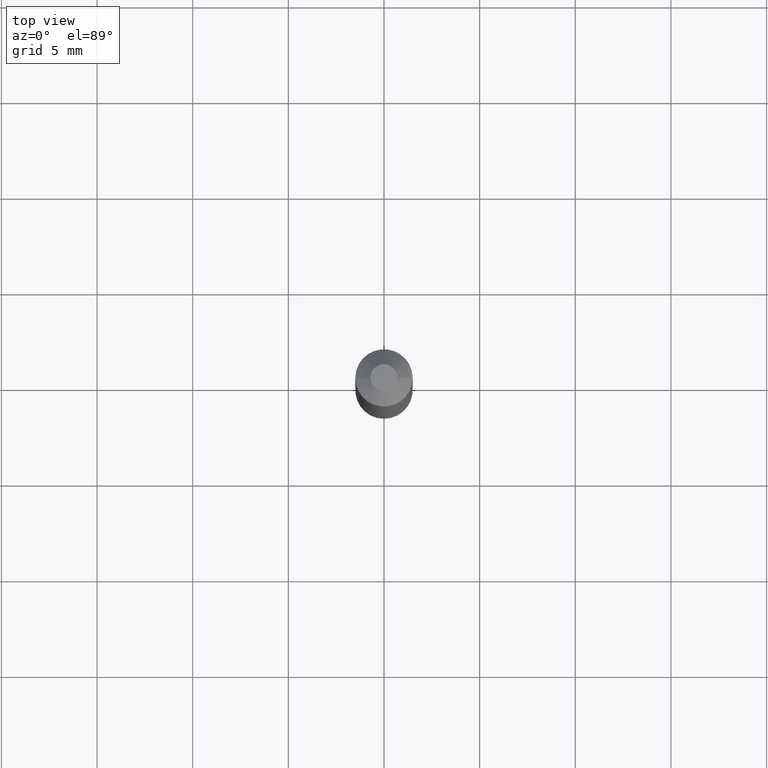
[diagram: clean part render]
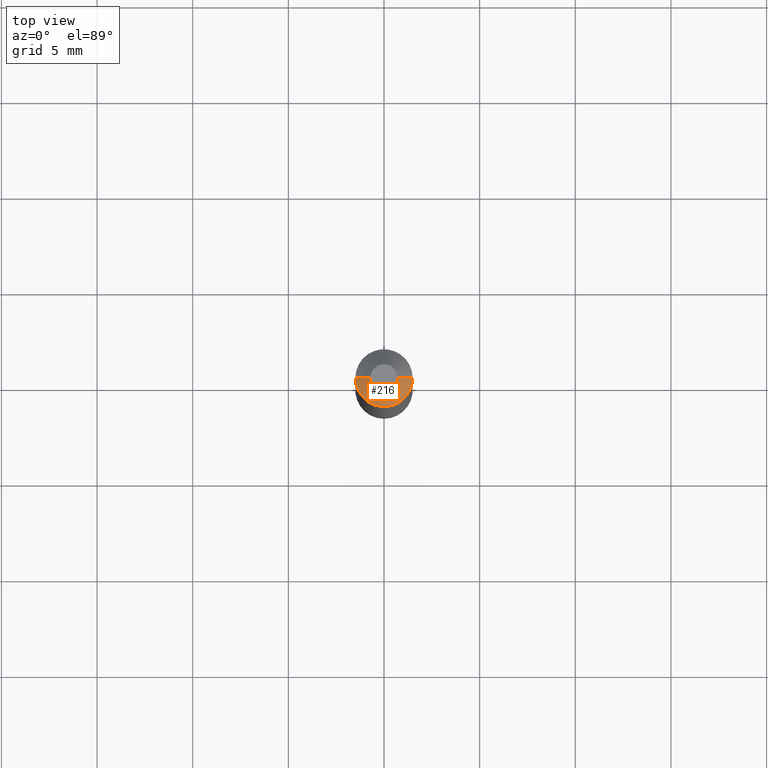
[diagram: same view with one face highlighted and labeled with its STEP entity id]
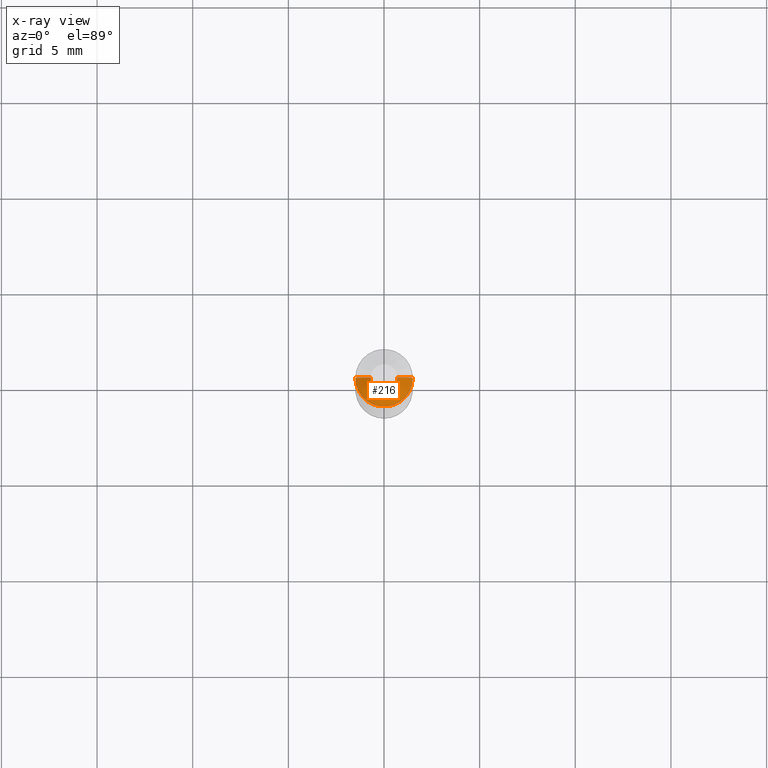
[diagram: x-ray of the same camera — body ghosted, the highlighted face saturated]
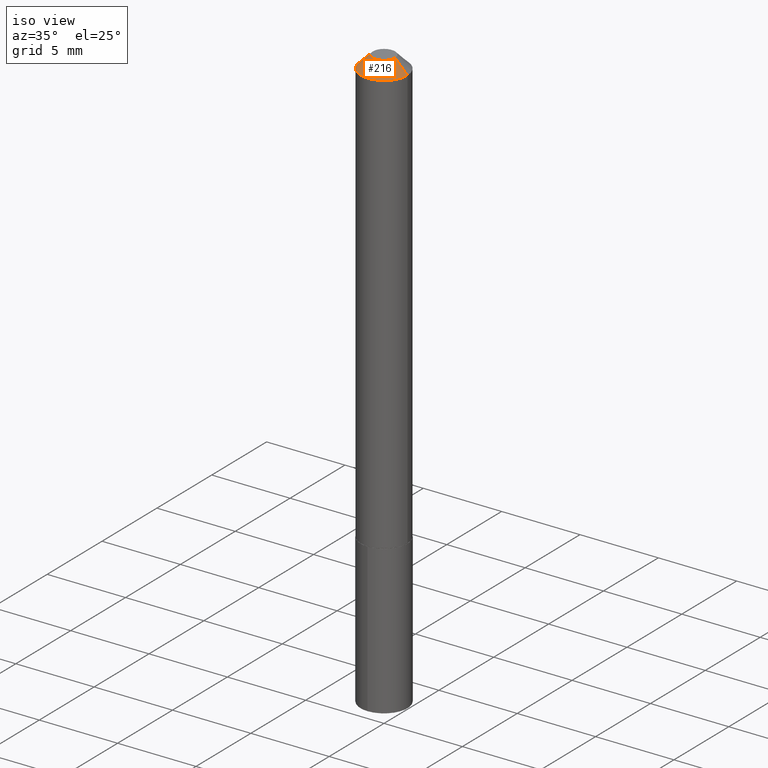
[diagram: same view with one face highlighted and labeled with its STEP entity id]
A machine part, top view. The second image highlights one B-rep face of the part: STEP entity #216.
The next image is the same camera in x-ray: the body ghosted, the highlighted face saturated — about 0% of this face is hidden behind the body in this view.
A second angle (iso view) of the same face is appended — the face is thin or edge-on in the first view.
In plain terms, the highlighted conical surface has half-angle 45 deg.
Its self-contained STEP definition (entity closure, byte-faithful):
#7 = DIRECTION ( 'NONE',  ( -0.7071067811865452413, 2.468850131082233000E-15, -0.7071067811865497932 ) ) ;
#23 = ORIENTED_EDGE ( 'NONE', *, *, #89, .F. ) ;
#27 = ORIENTED_EDGE ( 'NONE', *, *, #157, .T. ) ;
#28 = LINE ( 'NONE', #289, #211 ) ;
#47 = DIRECTION ( 'NONE',  ( -2.445468806185136597E-29, 3.491481338843145583E-15, 1.000000000000000000 ) ) ;
#56 = AXIS2_PLACEMENT_3D ( 'NONE', #297, #220, #62 ) ;
#59 = DIRECTION ( 'NONE',  ( 2.445468806185136597E-29, -3.491481338843145583E-15, -1.000000000000000000 ) ) ;
#62 = DIRECTION ( 'NONE',  ( 1.000000000000000000, -6.982962677686265922E-15, 0.000000000000000000 ) ) ;
#69 = EDGE_CURVE ( 'NONE', #210, #207, #363, .T. ) ;
#89 = EDGE_CURVE ( 'NONE', #207, #165, #28, .T. ) ;
#100 = FACE_OUTER_BOUND ( 'NONE', #287, .T. ) ;
#104 = CARTESIAN_POINT ( 'NONE',  ( 7.642090019328603538E-31, -1.091087918388490390E-16, -0.03125000000000021511 ) ) ;
#111 = VERTEX_POINT ( 'NONE', #257 ) ;
#112 = ORIENTED_EDGE ( 'NONE', *, *, #251, .T. ) ;
#131 = CARTESIAN_POINT ( 'NONE',  ( 0.05905000000000000526, -5.214527379562231333E-16, -0.03125000000000021511 ) ) ;
#147 = DIRECTION ( 'NONE',  ( 0.7071067811865452413, -7.319954787623248157E-15, -0.7071067811865497932 ) ) ;
#157 = EDGE_CURVE ( 'NONE', #210, #111, #366, .T. ) ;
#159 = AXIS2_PLACEMENT_3D ( 'NONE', #209, #47, #295 ) ;
#165 = VERTEX_POINT ( 'NONE', #131 ) ;
#179 = ORIENTED_EDGE ( 'NONE', *, *, #69, .F. ) ;
#207 = VERTEX_POINT ( 'NONE', #336 ) ;
#209 = CARTESIAN_POINT ( 'NONE',  ( 1.033218263338718333E-47, -1.475161848834456789E-33, -4.225031457058370958E-19 ) ) ;
#210 = VERTEX_POINT ( 'NONE', #333 ) ;
#211 = VECTOR ( 'NONE', #147, 39.37007874015748143 ) ;
#216 = ADVANCED_FACE ( 'NONE', ( #100 ), #306, .T. ) ;
#220 = DIRECTION ( 'NONE',  ( -2.445468806185136597E-29, 3.491481338843145583E-15, 1.000000000000000000 ) ) ;
#223 = CIRCLE ( 'NONE', #56, 0.05905000000000000526 ) ;
#251 = EDGE_CURVE ( 'NONE', #111, #165, #223, .T. ) ;
#253 = VECTOR ( 'NONE', #7, 39.37007874015748143 ) ;
#257 = CARTESIAN_POINT ( 'NONE',  ( -0.05905000000000000526, -1.544819202800284509E-15, -0.03125000000000021511 ) ) ;
#287 = EDGE_LOOP ( 'NONE', ( #23, #179, #27, #112 ) ) ;
#289 = CARTESIAN_POINT ( 'NONE',  ( 0.05905000000000000526, -5.142211986072579689E-16, -0.03125000000000021511 ) ) ;
#295 = DIRECTION ( 'NONE',  ( 1.000000000000000000, -6.982962677686266711E-15, 4.876227310796756046E-29 ) ) ;
#297 = CARTESIAN_POINT ( 'NONE',  ( 7.642090019328603538E-31, -1.091087918388490390E-16, -0.03125000000000021511 ) ) ;
#306 = CONICAL_SURFACE ( 'NONE', #373, 0.05905000000000000526, 0.7853981633974450594 ) ;
#329 = DIRECTION ( 'NONE',  ( -1.000000000000000000, 6.982962677686268288E-15, 0.000000000000000000 ) ) ;
#333 = CARTESIAN_POINT ( 'NONE',  ( -0.02779999999999999832, 2.486807583591016636E-16, -4.225031457073852064E-19 ) ) ;
#336 = CARTESIAN_POINT ( 'NONE',  ( 0.02779999999999999832, -3.524715214726532379E-16, -4.225031457039266214E-19 ) ) ;
#363 = CIRCLE ( 'NONE', #159, 0.02779999999999999832 ) ;
#366 = LINE ( 'NONE', #371, #253 ) ;
#371 = CARTESIAN_POINT ( 'NONE',  ( -0.05905000000000000526, 3.032351542785250800E-16, -0.03125000000000021511 ) ) ;
#373 = AXIS2_PLACEMENT_3D ( 'NONE', #104, #59, #329 ) ;